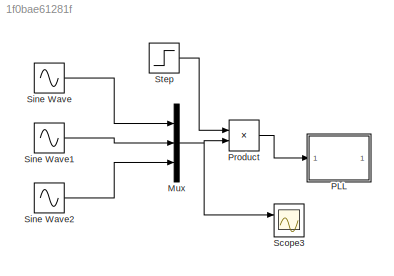
MODEL slx_1f0bae61281f
KIND model
CONFIG AbsTol = auto
CONFIG EnableMultiTasking = off
CONFIG FixedStep = auto
CONFIG InitFcn = fcut=20;fpi=5;Vm=310;\nfbase=50;\nKp=fcut/Vm;\nKi=2*pi*fpi*Kp;
CONFIG MaxStep = auto
CONFIG MinStep = auto
CONFIG RelTol = 1e-3
CONFIG SampleTimeConstraint = Unconstrained
CONFIG Solver = VariableStepAuto
CONFIG SolverName = VariableStepAuto
CONFIG StartTime = 0.0
CONFIG StopTime = 1
BLOCK [Mux] Mux
  DisplayOption = bar
  Inputs = 3
  Ports = [3, 1]
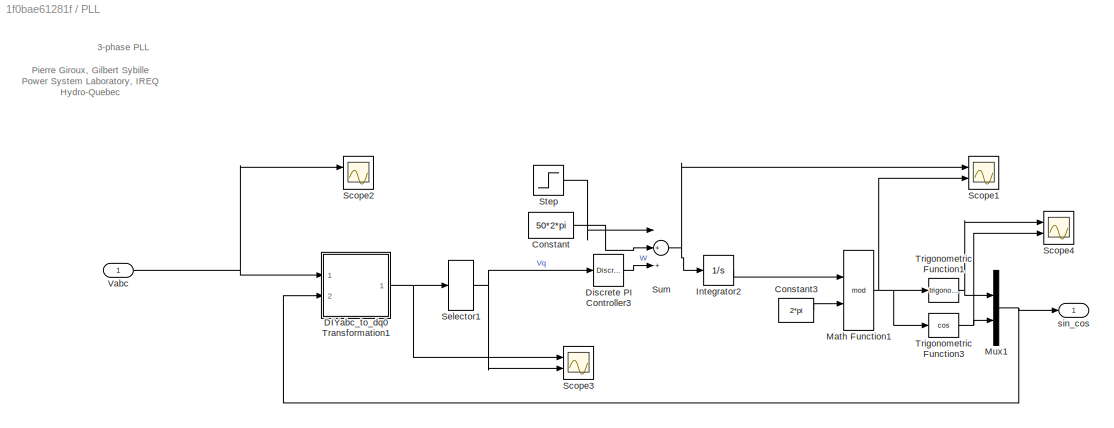
BLOCK [SubSystem] PLL
  Ports = [1, 1]
  RequestExecContextInheritance = off
BLOCK [Constant] PLL/Constant
  Value = 50*2*pi
BLOCK [Constant] PLL/Constant3
  Value = 2*pi
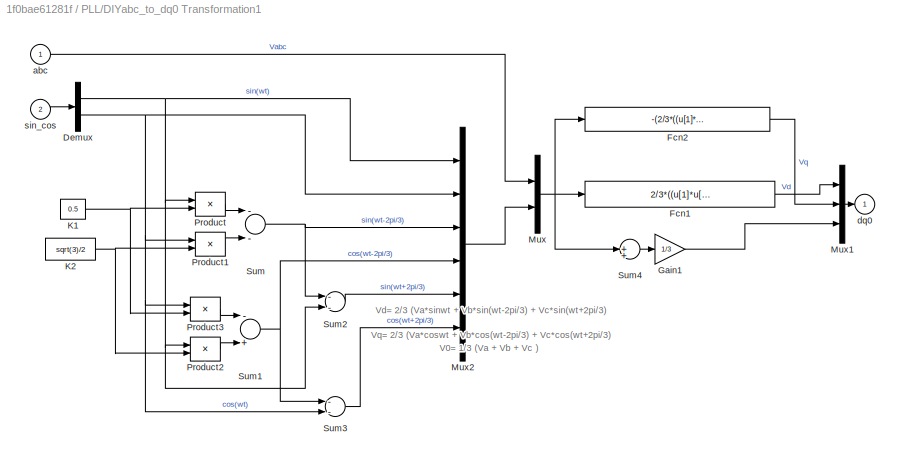
BLOCK [SubSystem] PLL/DIYabc_to_dq0 Transformation1
  AncestorBlock = powerlib_extras/Measurements/abc_to_dq0\nTransformation
  Ports = [2, 1]
  RequestExecContextInheritance = off
BLOCK [Demux] PLL/DIYabc_to_dq0 Transformation1/Demux
  DisplayOption = bar
  Outputs = 2
  Ports = [1, 2]
BLOCK [Fcn] PLL/DIYabc_to_dq0 Transformation1/Fcn1
  Expr = 2/3*((u[1]*u[5])+(u[2]*u[7])+(u[3]*u[9]))
BLOCK [Fcn] PLL/DIYabc_to_dq0 Transformation1/Fcn2
  Expr = -(2/3*((u[1]*u[4])+(u[2]*u[6])+(u[3]*u[8])))
BLOCK [Gain] PLL/DIYabc_to_dq0 Transformation1/Gain1
  Gain = 1/3
BLOCK [Constant] PLL/DIYabc_to_dq0 Transformation1/K1
  Value = 0.5
BLOCK [Constant] PLL/DIYabc_to_dq0 Transformation1/K2
  Value = sqrt(3)/2
BLOCK [Mux] PLL/DIYabc_to_dq0 Transformation1/Mux
  DisplayOption = bar
  Inputs = 2
  Ports = [2, 1]
BLOCK [Mux] PLL/DIYabc_to_dq0 Transformation1/Mux1
  DisplayOption = bar
  Inputs = 3
  Ports = [3, 1]
BLOCK [Mux] PLL/DIYabc_to_dq0 Transformation1/Mux2
  DisplayOption = bar
  Inputs = 6
  Ports = [6, 1]
BLOCK [Product] PLL/DIYabc_to_dq0 Transformation1/Product
  Ports = [2, 1]
  RndMeth = Floor
BLOCK [Product] PLL/DIYabc_to_dq0 Transformation1/Product1
  Ports = [2, 1]
  RndMeth = Floor
BLOCK [Product] PLL/DIYabc_to_dq0 Transformation1/Product2
  Ports = [2, 1]
  RndMeth = Floor
BLOCK [Product] PLL/DIYabc_to_dq0 Transformation1/Product3
  Ports = [2, 1]
  RndMeth = Floor
BLOCK [Sum] PLL/DIYabc_to_dq0 Transformation1/Sum
  Inputs = --
  Ports = [2, 1]
BLOCK [Sum] PLL/DIYabc_to_dq0 Transformation1/Sum1
  Inputs = -+
  Ports = [2, 1]
BLOCK [Sum] PLL/DIYabc_to_dq0 Transformation1/Sum2
  Inputs = --
  Ports = [2, 1]
BLOCK [Sum] PLL/DIYabc_to_dq0 Transformation1/Sum3
  Inputs = --
  Ports = [2, 1]
BLOCK [Sum] PLL/DIYabc_to_dq0 Transformation1/Sum4
  Inputs = 1
  Ports = [1, 1]
BLOCK [Inport] PLL/DIYabc_to_dq0 Transformation1/abc
  IconDisplay = Port number
  PortDimensions = 3
BLOCK [Outport] PLL/DIYabc_to_dq0 Transformation1/dq0
  IconDisplay = Port number
  InitialOutput = 0
BLOCK [Inport] PLL/DIYabc_to_dq0 Transformation1/sin_cos
  IconDisplay = Port number
  Port = 2
  PortDimensions = 2
BLOCK [Reference] PLL/Discrete PI Controller3  REF=powerlib_extras/Discrete 
Control Blocks/Discrete
PI Controller
  Ports = [1, 1]
  SourceBlock = powerlib_extras/Discrete \nControl Blocks/Discrete\nPI Controller
  SourceProductBaseCode = PS
  SourceProductName = Simscape Electrical
  SourceType = Discrete PI Controller
BLOCK [Integrator] PLL/Integrator2
  Ports = [1, 1]
BLOCK [Math] PLL/Math Function1
  Operator = mod
  Ports = [2, 1]
BLOCK [Mux] PLL/Mux1
  DisplayOption = bar
  Inputs = 2
  Ports = [2, 1]
BLOCK [Scope] PLL/Scope1
  Floating = off
  NumInputPorts = 2
  Ports = [2]
  ScopeSpecificationString = Simulink.scopes.TimeScopeBlockCfg('CurrentConfiguration', extmgr.ConfigurationSet(extmgr.Configuration('Core','General UI',true),extmgr.Configuration('Core','Source UI',true),extmgr.Configuration('Sources','WiredSimulink',true,'DataLoggingSaveFormat','StructureWithTime','DataLoggingDecimation','1','DataLoggingDecimateData',true),extmgr.Configuration('Visuals','Time Domain',true,'SerializedDisplays...<+2289ch>
BLOCK [Scope] PLL/Scope2
  Floating = off
  NumInputPorts = 2
  Ports = [2]
  ScopeSpecificationString = Simulink.scopes.TimeScopeBlockCfg('CurrentConfiguration', extmgr.ConfigurationSet(extmgr.Configuration('Core','General UI',true),extmgr.Configuration('Core','Source UI',true),extmgr.Configuration('Sources','WiredSimulink',true,'DataLoggingVariableName','ScopeData1','DataLoggingSaveFormat','StructureWithTime','DataLoggingDecimation','1','DataLoggingDecimateData',true),extmgr.Configuration('Visuals'...<+2335ch>
BLOCK [Scope] PLL/Scope3
  Floating = off
  NumInputPorts = 2
  Ports = [2]
  ScopeSpecificationString = Simulink.scopes.TimeScopeBlockCfg('CurrentConfiguration', extmgr.ConfigurationSet(extmgr.Configuration('Core','General UI',true),extmgr.Configuration('Core','Source UI',true),extmgr.Configuration('Sources','WiredSimulink',true,'DataLoggingVariableName','ScopeData12','DataLoggingSaveFormat','StructureWithTime','DataLoggingDecimation','1','DataLoggingDecimateData',true),extmgr.Configuration('Visuals...<+2408ch>
BLOCK [Scope] PLL/Scope4
  Floating = off
  NumInputPorts = 2
  Ports = [2]
  ScopeSpecificationString = Simulink.scopes.TimeScopeBlockCfg('CurrentConfiguration', extmgr.ConfigurationSet(extmgr.Configuration('Core','General UI',true),extmgr.Configuration('Core','Source UI',true),extmgr.Configuration('Sources','WiredSimulink',true,'DataLoggingSaveFormat','StructureWithTime','DataLoggingDecimation','1','DataLoggingDecimateData',true,'DataLoggingVariableName','ScopeData2'),extmgr.Configuration('Visuals'...<+2381ch>
BLOCK [Selector] PLL/Selector1
  IndexOptions = Index vector (dialog)
  Indices = 2
  InputPortWidth = 3
  OutputSizes = 1
  Ports = [1, 1]
BLOCK [Step] PLL/Step
  After = -25*2*pi
  SampleTime = 0
  Time = 0.5
BLOCK [Sum] PLL/Sum
  InputSameDT = off
  Inputs = |+++
  OutDataTypeStr = Inherit: Inherit via internal rule
  Ports = [3, 1]
  SaturateOnIntegerOverflow = off
BLOCK [Trigonometry] PLL/Trigonometric Function1
  Ports = [1, 1]
BLOCK [Trigonometry] PLL/Trigonometric Function3
  Operator = cos
  Ports = [1, 1]
BLOCK [Inport] PLL/Vabc
  IconDisplay = Port number
  PortDimensions = 3
BLOCK [Outport] PLL/sin_cos
  IconDisplay = Port number
BLOCK [Product] Product
  InputSameDT = off
  OutDataTypeStr = Inherit: Inherit via internal rule
  Ports = [2, 1]
  RndMeth = Floor
  SaturateOnIntegerOverflow = off
BLOCK [Scope] Scope3
  Floating = off
  NumInputPorts = 2
  Ports = [2]
  ScopeSpecificationString = Simulink.scopes.TimeScopeBlockCfg('CurrentConfiguration', extmgr.ConfigurationSet(extmgr.Configuration('Core','General UI',true),extmgr.Configuration('Core','Source UI',true),extmgr.Configuration('Sources','WiredSimulink',true,'DataLoggingVariableName','ScopeData3','DataLoggingSaveFormat','StructureWithTime','DataLoggingDecimation','1','DataLoggingDecimateData',true),extmgr.Configuration('Visuals'...<+2354ch>
BLOCK [Sin] Sine Wave
  Amplitude = 310
  Frequency = 50*2*pi
  Phase = pi/2
  Ports = [0, 1]
  SampleTime = 0
BLOCK [Sin] Sine Wave1
  Amplitude = 310
  Frequency = 50*2*pi
  Phase = pi/2-2*pi/3
  Ports = [0, 1]
  SampleTime = 0
BLOCK [Sin] Sine Wave2
  Amplitude = 310
  Frequency = 50*2*pi
  Phase = pi/2+2*pi/3
  Ports = [0, 1]
  SampleTime = 0
BLOCK [Step] Step
  Before = 1
  SampleTime = 0
  Time = 0.5
ANNOTATION PLL: 3-phase PLL
ANNOTATION PLL: Pierre Giroux, Gilbert Sybille Power System Laboratory, IREQ Hydro-Quebec
ANNOTATION PLL/DIYabc_to_dq0 Transformation1: V0= 1/3 (Va + Vb + Vc )
ANNOTATION PLL/DIYabc_to_dq0 Transformation1: Vd= 2/3 (Va*sinwt + Vb*sin(wt-2pi/3) + Vc*sin(wt+2pi/3)
ANNOTATION PLL/DIYabc_to_dq0 Transformation1: Vq= 2/3 (Va*coswt + Vb*cos(wt-2pi/3) + Vc*cos(wt+2pi/3)
NET Mux:1 -> Product:2, Scope3:1
LINE PLL/Constant3:1 -> PLL/Math Function1:2
LINE PLL/Constant:1 -> PLL/Sum:2
NET PLL/DIYabc_to_dq0 Transformation1:1 -> PLL/Scope3:1, PLL/Selector1:1
LINE PLL/Discrete PI Controller3:1 -> PLL/Sum:3
LINE PLL/Integrator2:1 -> PLL/Math Function1:1
NET PLL/Math Function1:1 -> PLL/Scope1:2, PLL/Trigonometric Function1:1, PLL/Trigonometric Function3:1
NET PLL/Mux1:1 -> PLL/DIYabc_to_dq0 Transformation1:2, PLL/sin_cos:1
NET PLL/Selector1:1 -> PLL/Discrete PI Controller3:1, PLL/Scope3:2
LINE PLL/Step:1 -> PLL/Sum:1
NET PLL/Sum:1 -> PLL/Integrator2:1, PLL/Scope1:1
NET PLL/Trigonometric Function1:1 -> PLL/Mux1:1, PLL/Scope4:1
NET PLL/Trigonometric Function3:1 -> PLL/Mux1:2, PLL/Scope4:2
NET PLL/Vabc:1 -> PLL/DIYabc_to_dq0 Transformation1:1, PLL/Scope2:1
LINE Product:1 -> PLL:1
LINE Sine Wave1:1 -> Mux:2
LINE Sine Wave2:1 -> Mux:3
LINE Sine Wave:1 -> Mux:1
LINE Step:1 -> Product:1
note: NET lines group one-source signal fan-out (src -> all destinations, sorted); 1:1 wires keep LINE
